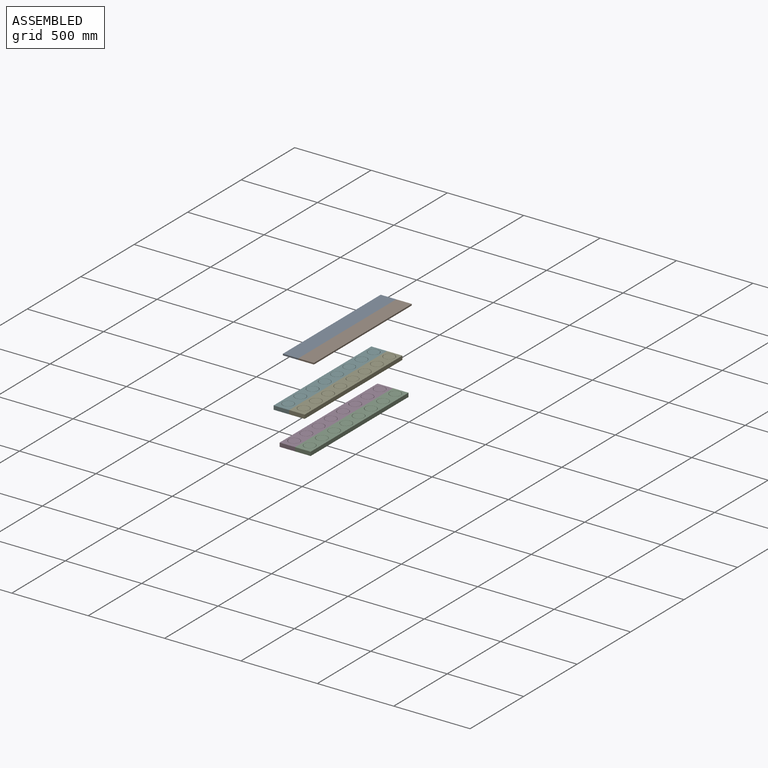
[diagram: assembled view]
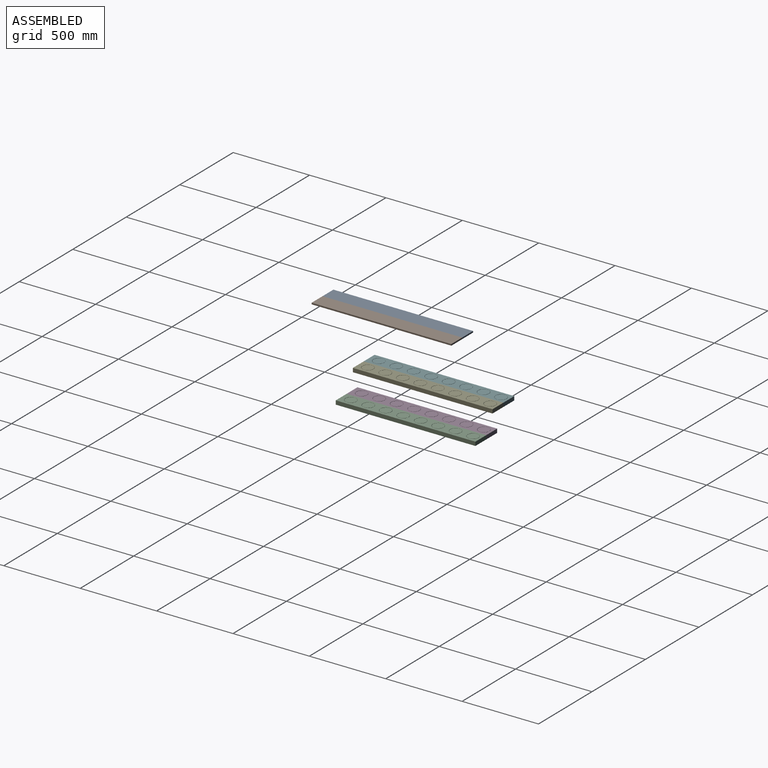
[diagram: assembled view, second angle]
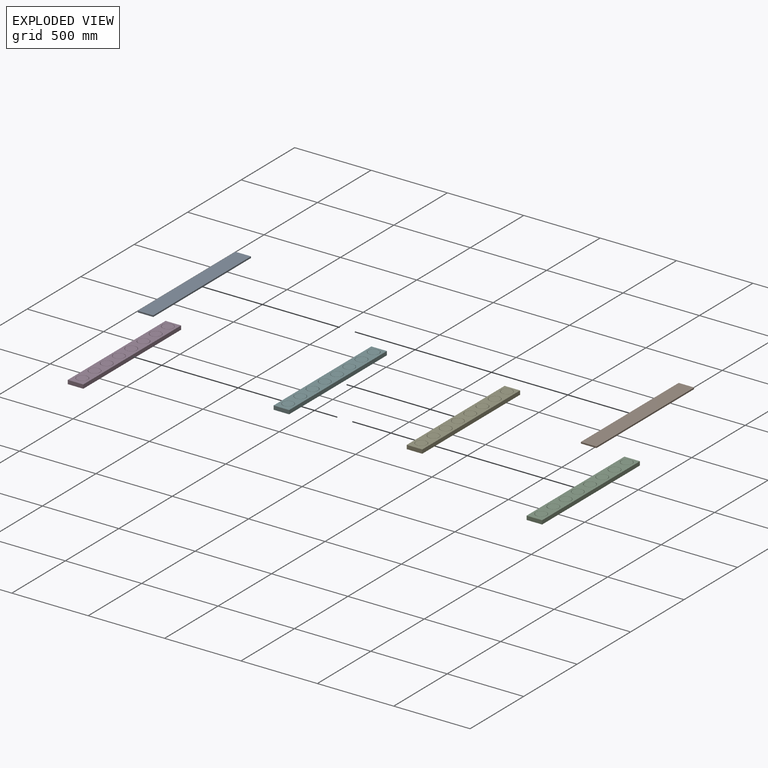
[diagram: exploded view]
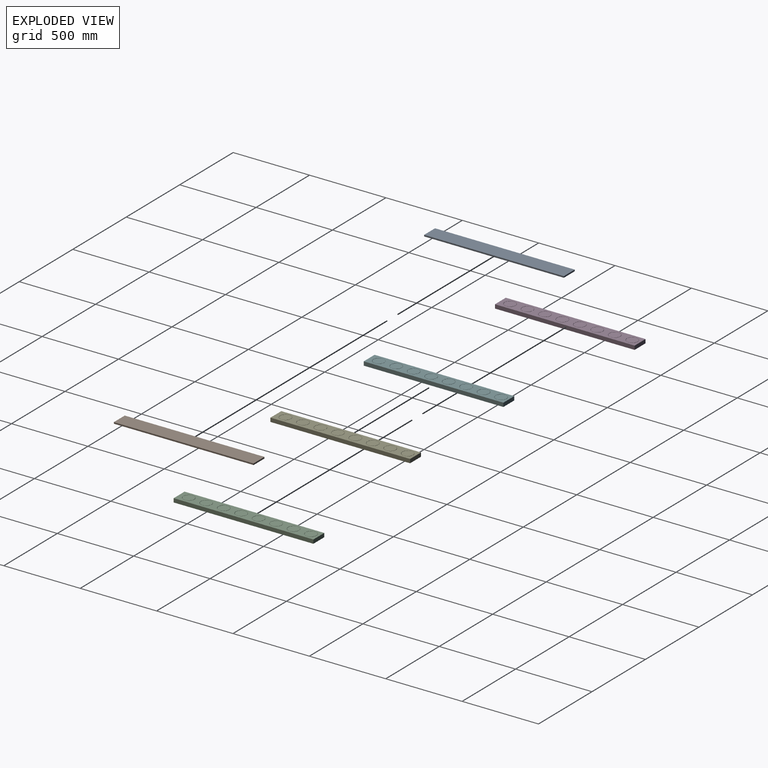
[diagram: exploded view, second angle]
ASSEMBLY  parts=6 mates=3
PART A: 6 faces, bbox 101.6x914.4x9.5 mm
  f0: plane 101.6x9.53mm, normal (0,1,0), area 967.7mm2, adj f1,f3,f4,f5
  f1: plane 914.4x9.53mm, normal (-1,0,0), area 8709.7mm2, adj f0,f2,f4,f5
  f2: plane 101.6x9.53mm, normal (0,-1,0), area 967.7mm2, adj f1,f3,f4,f5
  f3: plane 914.4x9.53mm, normal (1,0,0), area 8709.7mm2, adj f0,f2,f4,f5
  f4: plane 914.4x101.6mm, normal (0,0,1), area 92903mm2, adj f0,f1,f2,f3
  f5: plane 914.4x101.6mm, normal (0,0,-1), area 92903mm2, adj f0,f1,f2,f3
PART B: same geometry as A
PART C: 38 faces, bbox 101.6x914.4x25.4 mm
  f0: plane 101.6x25.4mm, normal (0,1,0), area 2580.6mm2, adj f1,f3,f4,f5
  f1: plane 914.4x25.4mm, normal (-1,0,0), area 23225.8mm2, adj f0,f2,f4,f5
  f2: plane 101.6x25.4mm, normal (0,-1,0), area 2580.6mm2, adj f1,f3,f4,f5
  f3: plane 914.4x25.4mm, normal (1,0,0), area 23225.8mm2, adj f0,f2,f4,f5
  f4: plane 914.4x101.6mm, normal (0,0,1), area 59397mm2, adj f0,f1,f2,f3,f7,f11,f15,f19
  f5: plane 914.4x101.6mm, normal (0,0,-1), area 92903mm2, adj f0,f1,f2,f3
  f6: cylinder r=34.92mm len=69.85mm, axis (0,0,1), area 5518mm2, adj f8,f9
  f7: cylinder r=36.51mm len=73.03mm, axis (0,0,1), area 5768.9mm2, adj f4,f8
  f8: plane 73.03x73.03mm, normal (0,0,1), area 356.3mm2, adj f6,f7
  f9: plane 69.85x69.85mm, normal (0,0,1), area 3832mm2, adj f6
  f10: cylinder r=34.92mm len=69.85mm, axis (0,0,1), area 5518mm2, adj f12,f13
  f11: cylinder r=36.51mm len=73.03mm, axis (0,0,1), area 5768.9mm2, adj f4,f12
  f12: plane 73.03x73.03mm, normal (0,0,1), area 356.3mm2, adj f10,f11
  f13: plane 69.85x69.85mm, normal (0,0,1), area 3832mm2, adj f10
  f14: cylinder r=34.92mm len=69.85mm, axis (0,0,1), area 5518mm2, adj f16,f17
  f15: cylinder r=36.51mm len=73.03mm, axis (0,0,1), area 5768.9mm2, adj f4,f16
  f16: plane 73.03x73.03mm, normal (0,0,1), area 356.3mm2, adj f14,f15
  f17: plane 69.85x69.85mm, normal (0,0,1), area 3832mm2, adj f14
  f18: cylinder r=34.92mm len=69.85mm, axis (0,0,1), area 5518mm2, adj f20,f21
  f19: cylinder r=36.51mm len=73.03mm, axis (0,0,1), area 5768.9mm2, adj f4,f20
  f20: plane 73.03x73.03mm, normal (0,0,1), area 356.3mm2, adj f18,f19
  f21: plane 69.85x69.85mm, normal (0,0,1), area 3832mm2, adj f18
  f22: cylinder r=34.92mm len=69.85mm, axis (0,0,1), area 5518mm2, adj f24,f25
  f23: cylinder r=36.51mm len=73.03mm, axis (0,0,1), area 5768.9mm2, adj f4,f24
  f24: plane 73.03x73.03mm, normal (0,0,1), area 356.3mm2, adj f22,f23
  f25: plane 69.85x69.85mm, normal (0,0,1), area 3832mm2, adj f22
  f26: cylinder r=34.92mm len=69.85mm, axis (0,0,1), area 5518mm2, adj f28,f29
  f27: cylinder r=36.51mm len=73.03mm, axis (0,0,1), area 5768.9mm2, adj f4,f28
  f28: plane 73.03x73.03mm, normal (0,0,1), area 356.3mm2, adj f26,f27
  f29: plane 69.85x69.85mm, normal (0,0,1), area 3832mm2, adj f26
  f30: cylinder r=34.92mm len=69.85mm, axis (0,0,1), area 5518mm2, adj f32,f33
  f31: cylinder r=36.51mm len=73.03mm, axis (0,0,1), area 5768.9mm2, adj f4,f32
  f32: plane 73.03x73.03mm, normal (0,0,1), area 356.3mm2, adj f30,f31
  f33: plane 69.85x69.85mm, normal (0,0,1), area 3832mm2, adj f30
  f34: cylinder r=34.92mm len=69.85mm, axis (0,0,1), area 5518mm2, adj f36,f37
  f35: cylinder r=36.51mm len=73.03mm, axis (0,0,1), area 5768.9mm2, adj f4,f36
  f36: plane 73.03x73.03mm, normal (0,0,1), area 356.3mm2, adj f34,f35
  f37: plane 69.85x69.85mm, normal (0,0,1), area 3832mm2, adj f34
PART D: same geometry as C
PART E: 38 faces, bbox 101.6x914.4x25.4 mm
  f0: plane 101.6x25.4mm, normal (0,1,0), area 2580.6mm2, adj f1,f3,f4,f5
  f1: plane 914.4x25.4mm, normal (-1,0,0), area 23225.8mm2, adj f0,f2,f4,f5
  f2: plane 101.6x25.4mm, normal (0,-1,0), area 2580.6mm2, adj f1,f3,f4,f5
  f3: plane 914.4x25.4mm, normal (1,0,0), area 23225.8mm2, adj f0,f2,f4,f5
  f4: plane 914.4x101.6mm, normal (0,0,1), area 90060.6mm2, adj f0,f1,f2,f3,f6,f7,f8,f9
  f5: plane 914.4x101.6mm, normal (0,0,-1), area 90060.6mm2, adj f0,f1,f2,f3,f6,f7,f8,f9
  f6: plane 25.4x1.59mm, normal (0,1,0), area 40.3mm2, adj f4,f5,f7,f9
  f7: cylinder r=36.51mm len=73.03mm, axis (0,0,1), area 5811.6mm2, adj f4,f5,f6,f8
  f8: plane 25.4x1.59mm, normal (0,-1,0), area 40.3mm2, adj f4,f5,f7,f9
  f9: cylinder r=34.92mm len=69.85mm, axis (0,0,1), area 5558.3mm2, adj f4,f5,f6,f8
  f10: plane 25.4x1.59mm, normal (0,1,0), area 40.3mm2, adj f4,f5,f11,f13
  f11: cylinder r=36.51mm len=73.03mm, axis (0,0,1), area 5811.6mm2, adj f4,f5,f10,f12
  f12: plane 25.4x1.59mm, normal (0,-1,0), area 40.3mm2, adj f4,f5,f11,f13
  f13: cylinder r=34.92mm len=69.85mm, axis (0,0,1), area 5558.3mm2, adj f4,f5,f10,f12
  f14: plane 25.4x1.59mm, normal (0,1,0), area 40.3mm2, adj f4,f5,f15,f17
  f15: cylinder r=36.51mm len=73.03mm, axis (0,0,1), area 5811.6mm2, adj f4,f5,f14,f16
  f16: plane 25.4x1.59mm, normal (0,-1,0), area 40.3mm2, adj f4,f5,f15,f17
  f17: cylinder r=34.92mm len=69.85mm, axis (0,0,1), area 5558.3mm2, adj f4,f5,f14,f16
  f18: plane 25.4x1.59mm, normal (0,1,0), area 40.3mm2, adj f4,f5,f19,f21
  f19: cylinder r=36.51mm len=73.03mm, axis (0,0,1), area 5811.6mm2, adj f4,f5,f18,f20
  f20: plane 25.4x1.59mm, normal (0,-1,0), area 40.3mm2, adj f4,f5,f19,f21
  f21: cylinder r=34.92mm len=69.85mm, axis (0,0,1), area 5558.3mm2, adj f4,f5,f18,f20
  f22: plane 25.4x1.59mm, normal (0,1,0), area 40.3mm2, adj f4,f5,f23,f25
  f23: cylinder r=36.51mm len=73.03mm, axis (0,0,1), area 5811.6mm2, adj f4,f5,f22,f24
  f24: plane 25.4x1.59mm, normal (0,-1,0), area 40.3mm2, adj f4,f5,f23,f25
  f25: cylinder r=34.92mm len=69.85mm, axis (0,0,1), area 5558.3mm2, adj f4,f5,f22,f24
  f26: plane 25.4x1.59mm, normal (0,1,0), area 40.3mm2, adj f4,f5,f27,f29
  f27: cylinder r=36.51mm len=73.03mm, axis (0,0,1), area 5811.6mm2, adj f4,f5,f26,f28
  f28: plane 25.4x1.59mm, normal (0,-1,0), area 40.3mm2, adj f4,f5,f27,f29
  f29: cylinder r=34.92mm len=69.85mm, axis (0,0,1), area 5558.3mm2, adj f4,f5,f26,f28
  f30: plane 25.4x1.59mm, normal (0,1,0), area 40.3mm2, adj f4,f5,f31,f33
  f31: cylinder r=36.51mm len=73.03mm, axis (0,0,1), area 5811.6mm2, adj f4,f5,f30,f32
  f32: plane 25.4x1.59mm, normal (0,-1,0), area 40.3mm2, adj f4,f5,f31,f33
  f33: cylinder r=34.92mm len=69.85mm, axis (0,0,1), area 5558.3mm2, adj f4,f5,f30,f32
  f34: plane 25.4x1.59mm, normal (0,1,0), area 40.3mm2, adj f4,f5,f35,f37
  f35: cylinder r=36.51mm len=73.03mm, axis (0,0,1), area 5811.6mm2, adj f4,f5,f34,f36
  f36: plane 25.4x1.59mm, normal (0,-1,0), area 40.3mm2, adj f4,f5,f35,f37
  f37: cylinder r=34.92mm len=69.85mm, axis (0,0,1), area 5558.3mm2, adj f4,f5,f34,f36
PART F: same geometry as E
PLACE A t=(-275.75,128.35,422.7)mm
PLACE B t=(-174.15,128.35,422.7)mm
PLACE C t=(-262.6,224.12,-178.89)mm
PLACE D t=(-364.2,224.12,-178.89)mm
PLACE E t=(-341.7,280.59,-2.05)mm
PLACE F t=(-443.3,280.59,-2.05)mm
MATE fastened D.f3 <-> C.f1  axis (1,0,0) through (-262.6,-233.08,-166.19)mm
MATE fastened B.f1 <-> A.f3  axis (-1,0,0) through (-174.15,-328.85,427.47)mm
MATE fastened F.f3 <-> E.f1  axis (1,0,0) through (-341.7,-176.61,10.65)mm
